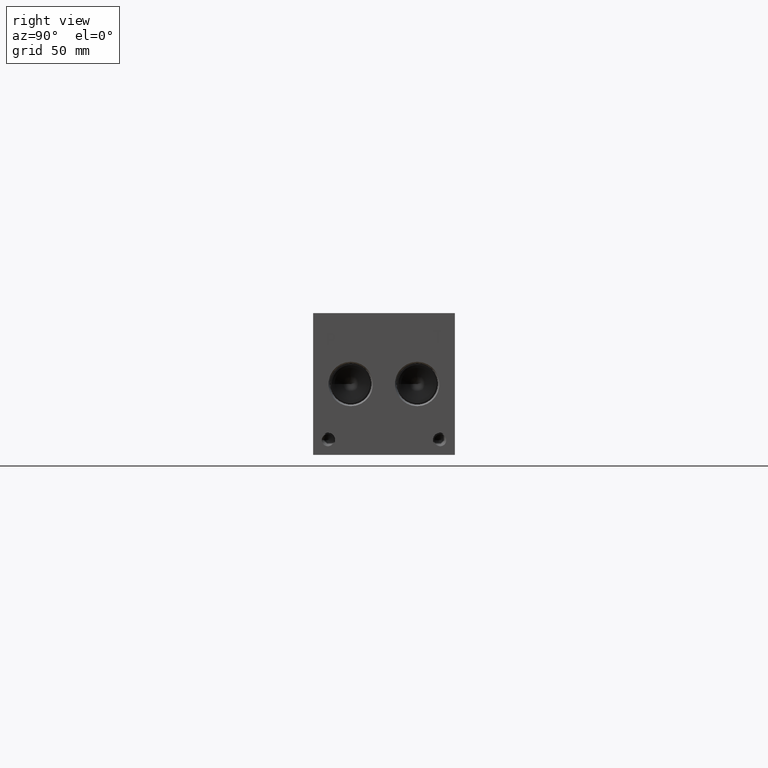
[diagram: clean part render]
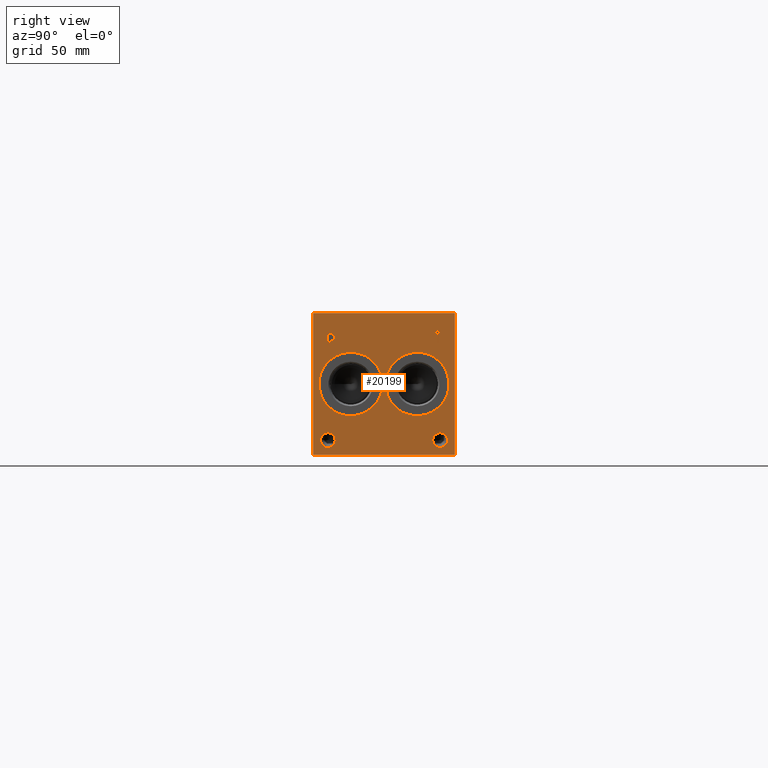
[diagram: same view with one face highlighted and labeled with its STEP entity id]
A machine part, right view. The second image highlights one B-rep face of the part: STEP entity #20199.
In plain terms, the highlighted planar face has unit normal (1, 0, 0).
Its self-contained STEP definition (entity closure, byte-faithful):
#381=CIRCLE('',#21111,17.0688);
#382=CIRCLE('',#21112,17.0688);
#383=CIRCLE('',#21113,17.0688);
#384=CIRCLE('',#21114,17.0688);
#385=CIRCLE('',#21115,3.9624);
#386=CIRCLE('',#21116,3.9624);
#387=CIRCLE('',#21117,3.9624);
#388=CIRCLE('',#21118,3.9624);
#1159=FACE_BOUND('',#3619,.T.);
#1160=FACE_BOUND('',#3620,.T.);
#1161=FACE_BOUND('',#3621,.T.);
#1162=FACE_BOUND('',#3622,.T.);
#1163=FACE_BOUND('',#3623,.T.);
#1164=FACE_BOUND('',#3624,.T.);
#1722=PLANE('',#21110);
#2458=FACE_OUTER_BOUND('',#3618,.T.);
#3618=EDGE_LOOP('',(#16375,#16376,#16377,#16378));
#3619=EDGE_LOOP('',(#16379,#16380));
#3620=EDGE_LOOP('',(#16381,#16382));
#3621=EDGE_LOOP('',(#16383,#16384));
#3622=EDGE_LOOP('',(#16385,#16386));
#3623=EDGE_LOOP('',(#16387,#16388,#16389,#16390,#16391,#16392,#16393,#16394));
#3624=EDGE_LOOP('',(#16395,#16396,#16397,#16398,#16399,#16400,#16401,#16402,
#16403));
#4259=LINE('',#27464,#5961);
#5475=LINE('',#33384,#7177);
#5478=LINE('',#33390,#7180);
#5481=LINE('',#33396,#7183);
#5484=LINE('',#33402,#7186);
#5487=LINE('',#33408,#7189);
#5491=LINE('',#33450,#7193);
#5492=LINE('',#33452,#7194);
#5493=LINE('',#33453,#7195);
#5494=LINE('',#33472,#7196);
#5495=LINE('',#33474,#7197);
#5496=LINE('',#33476,#7198);
#5497=LINE('',#33478,#7199);
#5498=LINE('',#33480,#7200);
#5499=LINE('',#33482,#7201);
#5500=LINE('',#33484,#7202);
#5501=LINE('',#33485,#7203);
#5961=VECTOR('',#22322,10.);
#7177=VECTOR('',#24398,10.);
#7180=VECTOR('',#24403,10.);
#7183=VECTOR('',#24408,10.);
#7186=VECTOR('',#24413,10.);
#7189=VECTOR('',#24418,10.);
#7193=VECTOR('',#24426,10.);
#7194=VECTOR('',#24427,10.);
#7195=VECTOR('',#24428,10.);
#7196=VECTOR('',#24445,10.);
#7197=VECTOR('',#24446,10.);
#7198=VECTOR('',#24447,10.);
#7199=VECTOR('',#24448,10.);
#7200=VECTOR('',#24449,10.);
#7201=VECTOR('',#24450,10.);
#7202=VECTOR('',#24451,10.);
#7203=VECTOR('',#24452,10.);
#8038=B_SPLINE_CURVE_WITH_KNOTS('',2,(#33351,#33352,#33353,#33354),
 .UNSPECIFIED.,.F.,.F.,(3,1,3),(0.,1.,2.),.UNSPECIFIED.);
#8040=B_SPLINE_CURVE_WITH_KNOTS('',2,(#33372,#33373,#33374,#33375),
 .UNSPECIFIED.,.F.,.F.,(3,1,3),(0.,1.,2.),.UNSPECIFIED.);
#8042=B_SPLINE_CURVE_WITH_KNOTS('',2,(#33421,#33422,#33423,#33424),
 .UNSPECIFIED.,.F.,.F.,(3,1,3),(0.,1.,2.),.UNSPECIFIED.);
#8044=B_SPLINE_CURVE_WITH_KNOTS('',2,(#33439,#33440,#33441,#33442),
 .UNSPECIFIED.,.F.,.F.,(3,1,3),(0.,1.,2.),.UNSPECIFIED.);
#8111=VERTEX_POINT('',#27461);
#8112=VERTEX_POINT('',#27463);
#9212=VERTEX_POINT('',#33349);
#9213=VERTEX_POINT('',#33350);
#9216=VERTEX_POINT('',#33371);
#9218=VERTEX_POINT('',#33383);
#9220=VERTEX_POINT('',#33389);
#9222=VERTEX_POINT('',#33395);
#9224=VERTEX_POINT('',#33401);
#9226=VERTEX_POINT('',#33407);
#9228=VERTEX_POINT('',#33420);
#9230=VERTEX_POINT('',#33449);
#9231=VERTEX_POINT('',#33451);
#9232=VERTEX_POINT('',#33454);
#9233=VERTEX_POINT('',#33455);
#9234=VERTEX_POINT('',#33458);
#9235=VERTEX_POINT('',#33459);
#9236=VERTEX_POINT('',#33462);
#9237=VERTEX_POINT('',#33463);
#9238=VERTEX_POINT('',#33466);
#9239=VERTEX_POINT('',#33467);
#9240=VERTEX_POINT('',#33470);
#9241=VERTEX_POINT('',#33471);
#9242=VERTEX_POINT('',#33473);
#9243=VERTEX_POINT('',#33475);
#9244=VERTEX_POINT('',#33477);
#9245=VERTEX_POINT('',#33479);
#9246=VERTEX_POINT('',#33481);
#9247=VERTEX_POINT('',#33483);
#10156=EDGE_CURVE('',#8111,#8112,#4259,.T.);
#11791=EDGE_CURVE('',#9212,#9213,#8038,.T.);
#11795=EDGE_CURVE('',#9216,#9212,#8040,.T.);
#11798=EDGE_CURVE('',#9218,#9216,#5475,.T.);
#11801=EDGE_CURVE('',#9220,#9218,#5478,.T.);
#11804=EDGE_CURVE('',#9222,#9220,#5481,.T.);
#11807=EDGE_CURVE('',#9224,#9222,#5484,.T.);
#11810=EDGE_CURVE('',#9226,#9224,#5487,.T.);
#11813=EDGE_CURVE('',#9228,#9226,#8042,.T.);
#11816=EDGE_CURVE('',#9213,#9228,#8044,.T.);
#11818=EDGE_CURVE('',#8111,#9230,#5491,.T.);
#11819=EDGE_CURVE('',#9230,#9231,#5492,.T.);
#11820=EDGE_CURVE('',#8112,#9231,#5493,.T.);
#11821=EDGE_CURVE('',#9232,#9233,#381,.T.);
#11822=EDGE_CURVE('',#9233,#9232,#382,.T.);
#11823=EDGE_CURVE('',#9234,#9235,#383,.T.);
#11824=EDGE_CURVE('',#9235,#9234,#384,.T.);
#11825=EDGE_CURVE('',#9236,#9237,#385,.T.);
#11826=EDGE_CURVE('',#9237,#9236,#386,.T.);
#11827=EDGE_CURVE('',#9238,#9239,#387,.T.);
#11828=EDGE_CURVE('',#9239,#9238,#388,.T.);
#11829=EDGE_CURVE('',#9240,#9241,#5494,.T.);
#11830=EDGE_CURVE('',#9241,#9242,#5495,.T.);
#11831=EDGE_CURVE('',#9242,#9243,#5496,.T.);
#11832=EDGE_CURVE('',#9243,#9244,#5497,.T.);
#11833=EDGE_CURVE('',#9244,#9245,#5498,.T.);
#11834=EDGE_CURVE('',#9245,#9246,#5499,.T.);
#11835=EDGE_CURVE('',#9246,#9247,#5500,.T.);
#11836=EDGE_CURVE('',#9247,#9240,#5501,.T.);
#16375=ORIENTED_EDGE('',*,*,#11818,.T.);
#16376=ORIENTED_EDGE('',*,*,#11819,.T.);
#16377=ORIENTED_EDGE('',*,*,#11820,.F.);
#16378=ORIENTED_EDGE('',*,*,#10156,.F.);
#16379=ORIENTED_EDGE('',*,*,#11821,.T.);
#16380=ORIENTED_EDGE('',*,*,#11822,.T.);
#16381=ORIENTED_EDGE('',*,*,#11823,.T.);
#16382=ORIENTED_EDGE('',*,*,#11824,.T.);
#16383=ORIENTED_EDGE('',*,*,#11825,.T.);
#16384=ORIENTED_EDGE('',*,*,#11826,.T.);
#16385=ORIENTED_EDGE('',*,*,#11827,.T.);
#16386=ORIENTED_EDGE('',*,*,#11828,.T.);
#16387=ORIENTED_EDGE('',*,*,#11829,.T.);
#16388=ORIENTED_EDGE('',*,*,#11830,.T.);
#16389=ORIENTED_EDGE('',*,*,#11831,.T.);
#16390=ORIENTED_EDGE('',*,*,#11832,.T.);
#16391=ORIENTED_EDGE('',*,*,#11833,.T.);
#16392=ORIENTED_EDGE('',*,*,#11834,.T.);
#16393=ORIENTED_EDGE('',*,*,#11835,.T.);
#16394=ORIENTED_EDGE('',*,*,#11836,.T.);
#16395=ORIENTED_EDGE('',*,*,#11791,.T.);
#16396=ORIENTED_EDGE('',*,*,#11816,.T.);
#16397=ORIENTED_EDGE('',*,*,#11813,.T.);
#16398=ORIENTED_EDGE('',*,*,#11810,.T.);
#16399=ORIENTED_EDGE('',*,*,#11807,.T.);
#16400=ORIENTED_EDGE('',*,*,#11804,.T.);
#16401=ORIENTED_EDGE('',*,*,#11801,.T.);
#16402=ORIENTED_EDGE('',*,*,#11798,.T.);
#16403=ORIENTED_EDGE('',*,*,#11795,.T.);
#20199=ADVANCED_FACE('',(#2458,#1159,#1160,#1161,#1162,#1163,#1164),#1722,
 .T.);
#21110=AXIS2_PLACEMENT_3D('',#33448,#24424,#24425);
#21111=AXIS2_PLACEMENT_3D('',#33456,#24429,#24430);
#21112=AXIS2_PLACEMENT_3D('',#33457,#24431,#24432);
#21113=AXIS2_PLACEMENT_3D('',#33460,#24433,#24434);
#21114=AXIS2_PLACEMENT_3D('',#33461,#24435,#24436);
#21115=AXIS2_PLACEMENT_3D('',#33464,#24437,#24438);
#21116=AXIS2_PLACEMENT_3D('',#33465,#24439,#24440);
#21117=AXIS2_PLACEMENT_3D('',#33468,#24441,#24442);
#21118=AXIS2_PLACEMENT_3D('',#33469,#24443,#24444);
#22322=DIRECTION('',(0.,0.,1.));
#24398=DIRECTION('',(0.,1.,0.));
#24403=DIRECTION('',(0.,0.,1.));
#24408=DIRECTION('',(0.,-1.,0.));
#24413=DIRECTION('',(0.,0.,-1.));
#24418=DIRECTION('',(0.,-1.,0.));
#24424=DIRECTION('center_axis',(1.,0.,0.));
#24425=DIRECTION('ref_axis',(0.,1.,0.));
#24426=DIRECTION('',(0.,1.,0.));
#24427=DIRECTION('',(0.,0.,1.));
#24428=DIRECTION('',(0.,1.,0.));
#24429=DIRECTION('center_axis',(-1.,0.,0.));
#24430=DIRECTION('ref_axis',(0.,0.,-1.));
#24431=DIRECTION('center_axis',(-1.,0.,0.));
#24432=DIRECTION('ref_axis',(0.,0.,-1.));
#24433=DIRECTION('center_axis',(-1.,0.,0.));
#24434=DIRECTION('ref_axis',(0.,0.,-1.));
#24435=DIRECTION('center_axis',(-1.,0.,0.));
#24436=DIRECTION('ref_axis',(0.,0.,-1.));
#24437=DIRECTION('center_axis',(-1.,0.,0.));
#24438=DIRECTION('ref_axis',(0.,1.,0.));
#24439=DIRECTION('center_axis',(-1.,0.,0.));
#24440=DIRECTION('ref_axis',(0.,1.,0.));
#24441=DIRECTION('center_axis',(-1.,0.,0.));
#24442=DIRECTION('ref_axis',(0.,1.,0.));
#24443=DIRECTION('center_axis',(-1.,0.,0.));
#24444=DIRECTION('ref_axis',(0.,1.,0.));
#24445=DIRECTION('',(0.,-1.,0.));
#24446=DIRECTION('',(0.,0.,1.));
#24447=DIRECTION('',(0.,-1.,0.));
#24448=DIRECTION('',(0.,0.,1.));
#24449=DIRECTION('',(0.,1.,0.));
#24450=DIRECTION('',(0.,0.,-1.));
#24451=DIRECTION('',(0.,-1.,0.));
#24452=DIRECTION('',(0.,0.,-1.));
#27461=CARTESIAN_POINT('',(377.825,0.,0.));
#27463=CARTESIAN_POINT('',(377.825,0.,76.2));
#27464=CARTESIAN_POINT('',(377.825,0.,0.));
#33349=CARTESIAN_POINT('',(377.825,11.0443172023594,64.6912681439707));
#33350=CARTESIAN_POINT('',(377.825,11.800759654532,63.1732373726039));
#33351=CARTESIAN_POINT('Ctrl Pts',(377.825,11.0443172023594,64.6912681439707));
#33352=CARTESIAN_POINT('Ctrl Pts',(377.825,11.3993820268486,64.4494123939564));
#33353=CARTESIAN_POINT('Ctrl Pts',(377.825,11.800759654532,63.7032616758269));
#33354=CARTESIAN_POINT('Ctrl Pts',(377.825,11.800759654532,63.1732373726039));
#33371=CARTESIAN_POINT('',(377.825,9.3822021543883,65.0874999046326));
#33372=CARTESIAN_POINT('Ctrl Pts',(377.825,9.3822021543883,65.0874999046326));
#33373=CARTESIAN_POINT('Ctrl Pts',(377.825,9.94824752676236,65.0874999046326));
#33374=CARTESIAN_POINT('Ctrl Pts',(377.825,10.740711048086,64.9022486918556));
#33375=CARTESIAN_POINT('Ctrl Pts',(377.825,11.0443172023594,64.6912681439707));
#33383=CARTESIAN_POINT('',(377.825,7.78698337769779,65.0874999046326));
#33384=CARTESIAN_POINT('',(377.825,3.89349168884889,65.0874999046326));
#33389=CARTESIAN_POINT('',(377.825,7.78698337769779,58.7375));
#33390=CARTESIAN_POINT('',(377.825,7.78698337769779,29.36875));
#33395=CARTESIAN_POINT('',(377.825,8.63090556923729,58.7375));
#33396=CARTESIAN_POINT('',(377.825,4.31545278461864,58.7375));
#33401=CARTESIAN_POINT('',(377.825,8.63090556923729,61.1045988299279));
#33402=CARTESIAN_POINT('',(377.825,8.63090556923729,30.5522994149639));
#33407=CARTESIAN_POINT('',(377.825,9.34618108523723,61.1045988299279));
#33408=CARTESIAN_POINT('',(377.825,4.67309054261861,61.1045988299279));
#33420=CARTESIAN_POINT('',(377.825,11.2450060162011,61.7632698086904));
#33421=CARTESIAN_POINT('Ctrl Pts',(377.825,11.2450060162011,61.7632698086904));
#33422=CARTESIAN_POINT('Ctrl Pts',(377.825,10.9156705268198,61.4390801863307));
#33423=CARTESIAN_POINT('Ctrl Pts',(377.825,10.0254355320861,61.1045988299279));
#33424=CARTESIAN_POINT('Ctrl Pts',(377.825,9.34618108523723,61.1045988299279));
#33439=CARTESIAN_POINT('Ctrl Pts',(377.825,11.800759654532,63.1732373726039));
#33440=CARTESIAN_POINT('Ctrl Pts',(377.825,11.800759654532,62.7615680108774));
#33441=CARTESIAN_POINT('Ctrl Pts',(377.825,11.5074452343018,62.0205631597695));
#33442=CARTESIAN_POINT('Ctrl Pts',(377.825,11.2450060162011,61.7632698086904));
#33448=CARTESIAN_POINT('Origin',(377.825,0.,0.));
#33449=CARTESIAN_POINT('',(377.825,76.2,0.));
#33450=CARTESIAN_POINT('',(377.825,0.,0.));
#33451=CARTESIAN_POINT('',(377.825,76.2,76.2));
#33452=CARTESIAN_POINT('',(377.825,76.2,0.));
#33453=CARTESIAN_POINT('',(377.825,0.,76.2));
#33454=CARTESIAN_POINT('',(377.825,55.9562,21.0312));
#33455=CARTESIAN_POINT('',(377.825,55.9562,55.1688));
#33456=CARTESIAN_POINT('Origin',(377.825,55.9562,38.1));
#33457=CARTESIAN_POINT('Origin',(377.825,55.9562,38.1));
#33458=CARTESIAN_POINT('',(377.825,20.2438,21.0312));
#33459=CARTESIAN_POINT('',(377.825,20.2438,55.1688));
#33460=CARTESIAN_POINT('Origin',(377.825,20.2438,38.1));
#33461=CARTESIAN_POINT('Origin',(377.825,20.2438,38.1));
#33462=CARTESIAN_POINT('',(377.825,11.8872,7.9248));
#33463=CARTESIAN_POINT('',(377.825,3.9624,7.9248));
#33464=CARTESIAN_POINT('Origin',(377.825,7.9248,7.9248));
#33465=CARTESIAN_POINT('Origin',(377.825,7.9248,7.9248));
#33466=CARTESIAN_POINT('',(377.825,72.2376,7.9248));
#33467=CARTESIAN_POINT('',(377.825,64.3128,7.9248));
#33468=CARTESIAN_POINT('Origin',(377.825,68.2752,7.9248));
#33469=CARTESIAN_POINT('Origin',(377.825,68.2752,7.9248));
#33470=CARTESIAN_POINT('',(377.825,67.262915271453,60.325));
#33471=CARTESIAN_POINT('',(377.825,66.4189930799135,60.325));
#33472=CARTESIAN_POINT('',(377.825,33.6314576357265,60.325));
#33473=CARTESIAN_POINT('',(377.825,66.4189930799135,65.9237033194816));
#33474=CARTESIAN_POINT('',(377.825,66.4189930799135,30.1625));
#33475=CARTESIAN_POINT('',(377.825,64.2886041329784,65.9237033194816));
#33476=CARTESIAN_POINT('',(377.825,33.2094965399567,65.9237033194816));
#33477=CARTESIAN_POINT('',(377.825,64.2886041329784,66.6749999046326));
#33478=CARTESIAN_POINT('',(377.825,64.2886041329784,32.9618516597408));
#33479=CARTESIAN_POINT('',(377.825,69.3933042183881,66.6749999046326));
#33480=CARTESIAN_POINT('',(377.825,32.1443020664892,66.6749999046326));
#33481=CARTESIAN_POINT('',(377.825,69.3933042183881,65.9237033194816));
#33482=CARTESIAN_POINT('',(377.825,69.3933042183881,33.3374999523163));
#33483=CARTESIAN_POINT('',(377.825,67.262915271453,65.9237033194816));
#33484=CARTESIAN_POINT('',(377.825,34.696652109194,65.9237033194816));
#33485=CARTESIAN_POINT('',(377.825,67.262915271453,32.9618516597408));